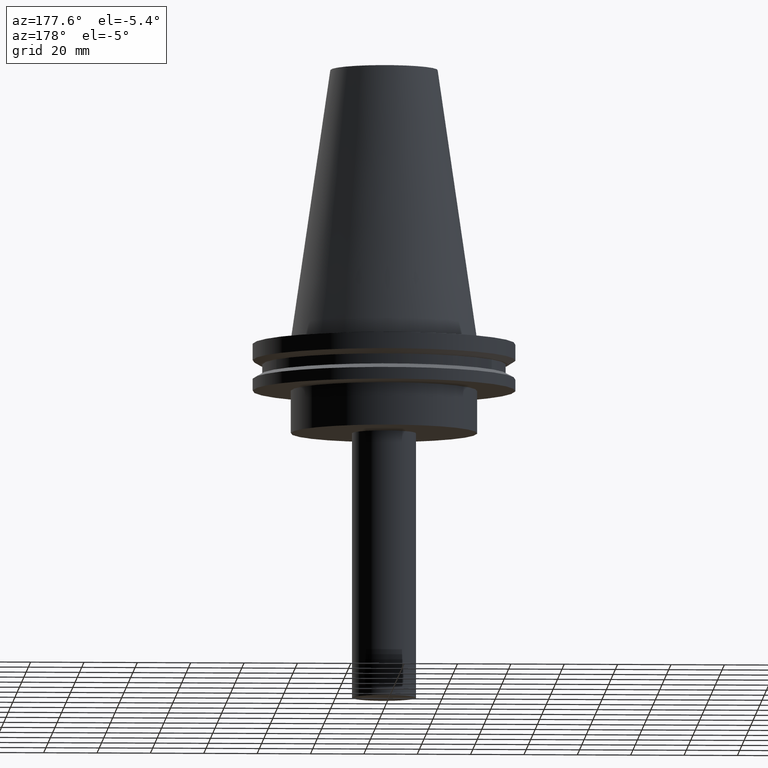
[diagram: clean part render]
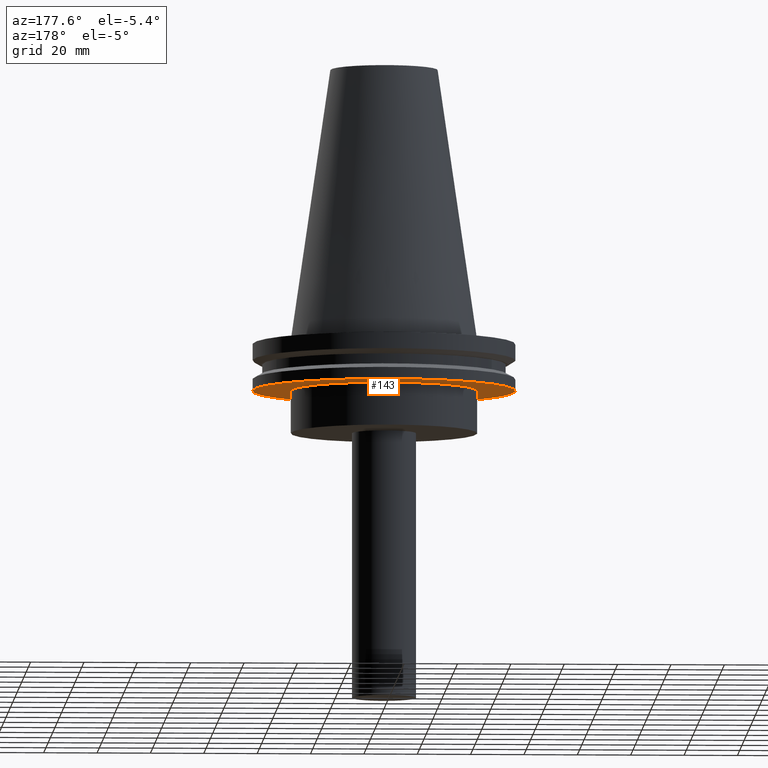
[diagram: same view with one face highlighted and labeled with its STEP entity id]
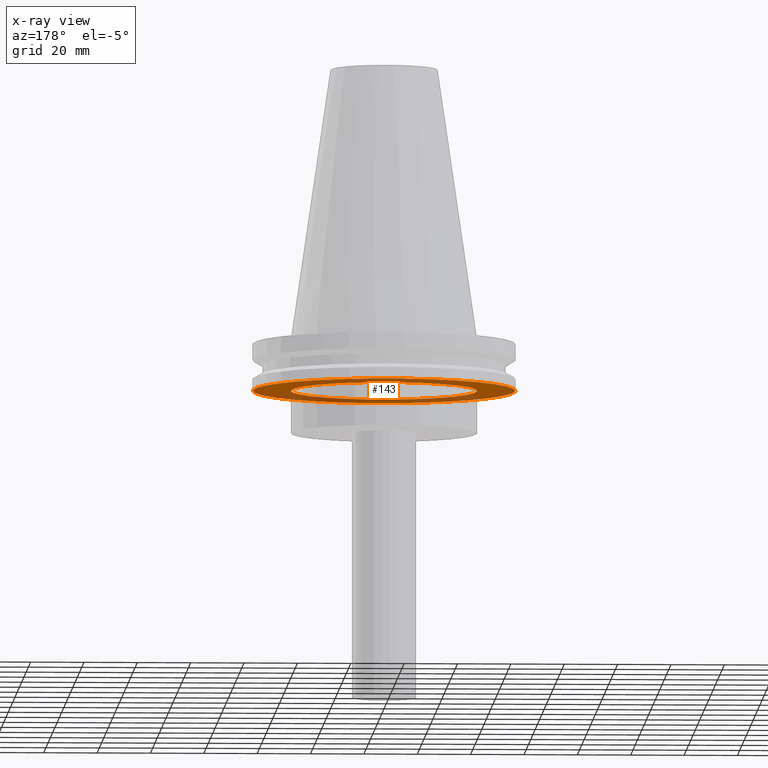
[diagram: x-ray of the same camera — body ghosted, the highlighted face saturated]
A machine part, auxiliary view. The second image highlights one B-rep face of the part: STEP entity #143.
The next image is the same camera in x-ray: the body ghosted, the highlighted face saturated — about 30% of this face is hidden behind the body in this view.
In plain terms, the highlighted planar face has unit normal (0, -0, 1).
Its self-contained STEP definition (entity closure, byte-faithful):
#5 = CARTESIAN_POINT ( 'NONE',  ( 0.000000000000000000, 0.000000000000000000, -19.04999999999999716 ) ) ;
#9 = ORIENTED_EDGE ( 'NONE', *, *, #309, .T. ) ;
#20 = DIRECTION ( 'NONE',  ( 0.000000000000000000, -0.000000000000000000, 1.000000000000000000 ) ) ;
#27 = CIRCLE ( 'NONE', #31, 49.21499999999998920 ) ;
#31 = AXIS2_PLACEMENT_3D ( 'NONE', #234, #207, #112 ) ;
#67 = EDGE_LOOP ( 'NONE', ( #9 ) ) ;
#71 = CARTESIAN_POINT ( 'NONE',  ( 49.21499999999998920, 0.000000000000000000, -19.04999999999999716 ) ) ;
#112 = DIRECTION ( 'NONE',  ( 1.000000000000000000, 0.000000000000000000, 0.000000000000000000 ) ) ;
#129 = ORIENTED_EDGE ( 'NONE', *, *, #163, .F. ) ;
#134 = VERTEX_POINT ( 'NONE', #71 ) ;
#143 = ADVANCED_FACE ( 'NONE', ( #385, #202 ), #300, .F. ) ;
#146 = CARTESIAN_POINT ( 'NONE',  ( 0.000000000000000000, 49.21499999999998920, -19.04999999999999716 ) ) ;
#156 = CARTESIAN_POINT ( 'NONE',  ( 34.92499999999999716, 0.000000000000000000, -19.04999999999999716 ) ) ;
#163 = EDGE_CURVE ( 'NONE', #134, #134, #27, .T. ) ;
#167 = DIRECTION ( 'NONE',  ( 1.000000000000000000, 0.000000000000000000, 0.000000000000000000 ) ) ;
#202 = FACE_BOUND ( 'NONE', #67, .T. ) ;
#207 = DIRECTION ( 'NONE',  ( -0.000000000000000000, -0.000000000000000000, 1.000000000000000000 ) ) ;
#234 = CARTESIAN_POINT ( 'NONE',  ( 0.000000000000000000, 0.000000000000000000, -19.04999999999999716 ) ) ;
#270 = DIRECTION ( 'NONE',  ( 1.000000000000000000, 0.000000000000000000, 0.000000000000000000 ) ) ;
#274 = CIRCLE ( 'NONE', #308, 34.92499999999999716 ) ;
#300 = PLANE ( 'NONE',  #329 ) ;
#308 = AXIS2_PLACEMENT_3D ( 'NONE', #5, #376, #167 ) ;
#309 = EDGE_CURVE ( 'NONE', #311, #311, #274, .T. ) ;
#311 = VERTEX_POINT ( 'NONE', #156 ) ;
#314 = EDGE_LOOP ( 'NONE', ( #129 ) ) ;
#329 = AXIS2_PLACEMENT_3D ( 'NONE', #146, #20, #270 ) ;
#376 = DIRECTION ( 'NONE',  ( -0.000000000000000000, -0.000000000000000000, 1.000000000000000000 ) ) ;
#385 = FACE_OUTER_BOUND ( 'NONE', #314, .T. ) ;